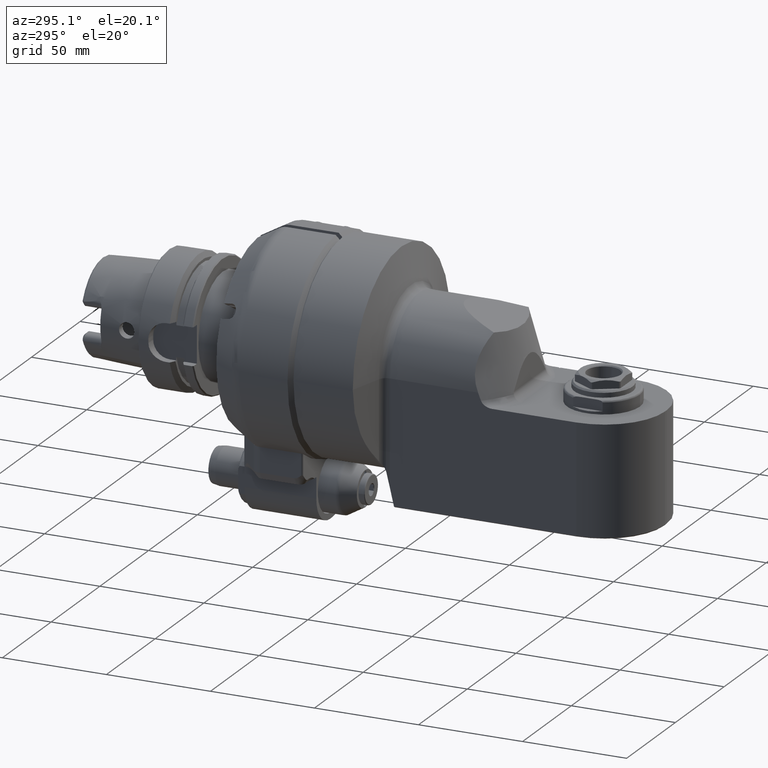
[diagram: clean part render]
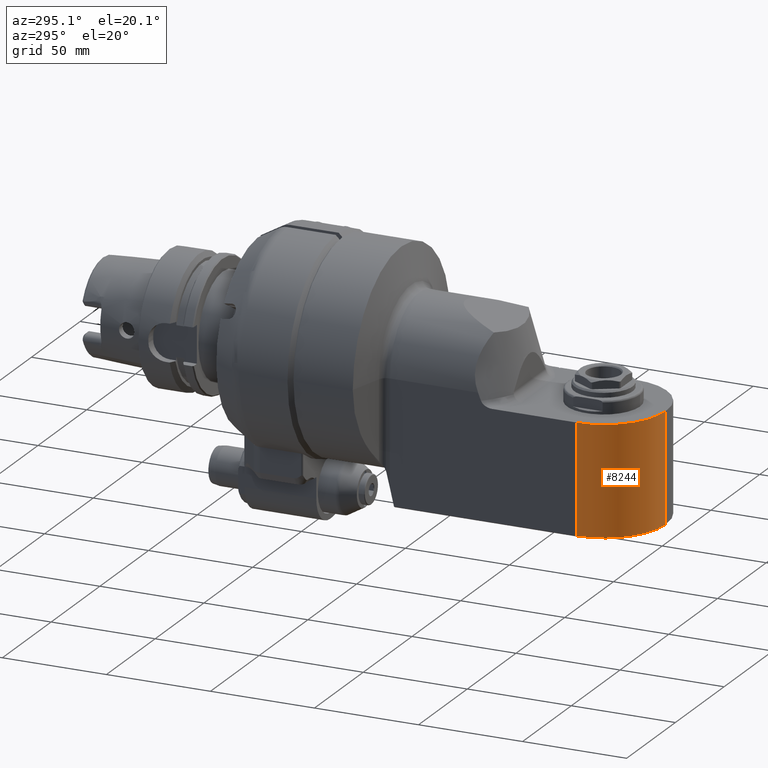
[diagram: same view with one face highlighted and labeled with its STEP entity id]
A machine part, auxiliary view. The second image highlights one B-rep face of the part: STEP entity #8244.
In plain terms, the highlighted cylindrical surface (partial cylindrical patch) has radius 29 mm, axis along (0, -0, 1).
Its self-contained STEP definition (entity closure, byte-faithful):
#759=FACE_OUTER_BOUND('',#1252,.T.);
#1252=EDGE_LOOP('',(#5698,#5699,#5700,#5701));
#1785=LINE('',#12328,#2352);
#1810=LINE('',#12533,#2377);
#2352=VECTOR('',#9812,52.5);
#2377=VECTOR('',#9901,52.5);
#2941=CIRCLE('',#8814,29.);
#2949=CIRCLE('',#8830,29.);
#3402=VERTEX_POINT('',#12320);
#3404=VERTEX_POINT('',#12327);
#3417=VERTEX_POINT('',#12459);
#3438=VERTEX_POINT('',#12527);
#4277=EDGE_CURVE('',#3404,#3402,#1785,.T.);
#4299=EDGE_CURVE('',#3404,#3417,#2941,.T.);
#4328=EDGE_CURVE('',#3438,#3402,#2949,.T.);
#4329=EDGE_CURVE('',#3438,#3417,#1810,.T.);
#5698=ORIENTED_EDGE('',*,*,#4277,.T.);
#5699=ORIENTED_EDGE('',*,*,#4328,.F.);
#5700=ORIENTED_EDGE('',*,*,#4329,.T.);
#5701=ORIENTED_EDGE('',*,*,#4299,.F.);
#8102=CYLINDRICAL_SURFACE('',#8831,29.);
#8244=ADVANCED_FACE('',(#759),#8102,.T.);
#8814=AXIS2_PLACEMENT_3D('',#12460,#9845,#9846);
#8830=AXIS2_PLACEMENT_3D('',#12531,#9897,#9898);
#8831=AXIS2_PLACEMENT_3D('',#12532,#9899,#9900);
#9812=DIRECTION('',(0.,1.,0.));
#9845=DIRECTION('center_axis',(0.,-1.,0.));
#9846=DIRECTION('ref_axis',(0.,0.,-1.));
#9897=DIRECTION('center_axis',(0.,1.,0.));
#9898=DIRECTION('ref_axis',(1.,0.,0.));
#9899=DIRECTION('center_axis',(0.,-1.,0.));
#9900=DIRECTION('ref_axis',(-1.,0.,0.));
#9901=DIRECTION('',(0.,-1.,0.));
#12320=CARTESIAN_POINT('',(131.,59.,-30.));
#12327=CARTESIAN_POINT('',(131.,6.5,-30.));
#12328=CARTESIAN_POINT('',(131.,6.5,-30.));
#12459=CARTESIAN_POINT('',(160.,6.5,-1.));
#12460=CARTESIAN_POINT('Origin',(131.,6.5,-1.));
#12527=CARTESIAN_POINT('',(160.,59.,-1.));
#12531=CARTESIAN_POINT('Origin',(131.,59.,-1.));
#12532=CARTESIAN_POINT('Origin',(131.,0.,-1.));
#12533=CARTESIAN_POINT('',(160.,59.,-1.));